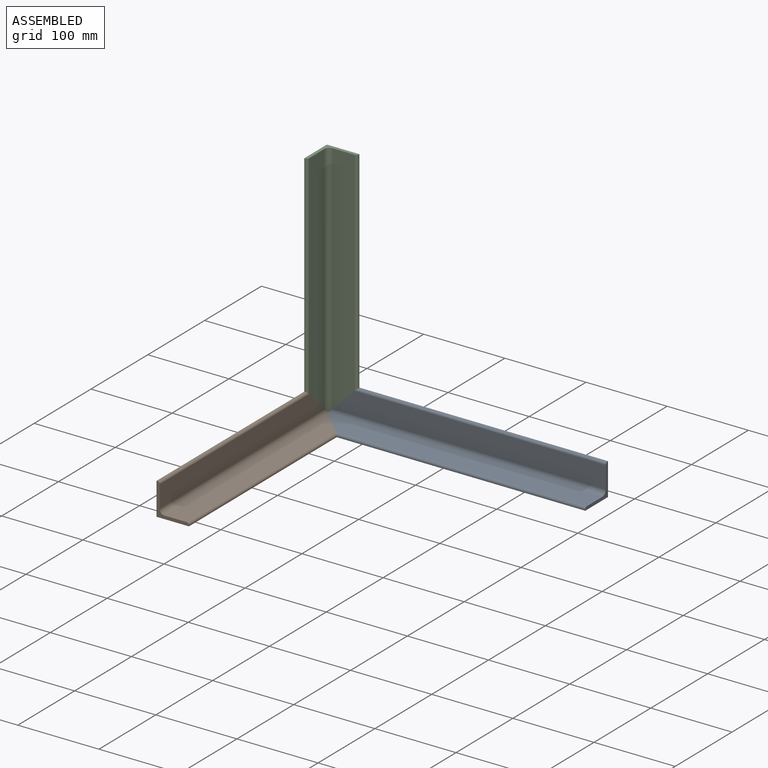
[diagram: assembled view]
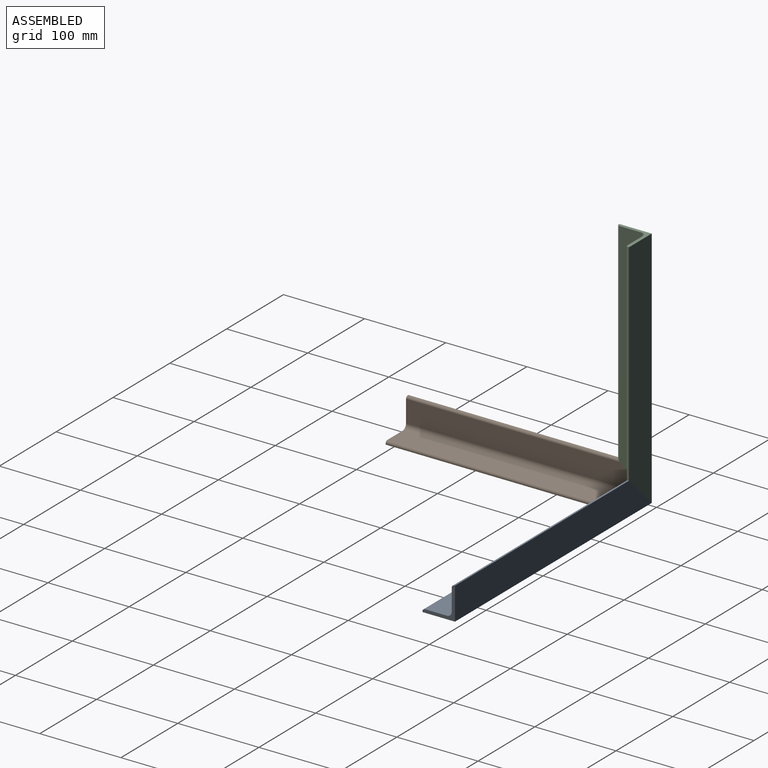
[diagram: assembled view, second angle]
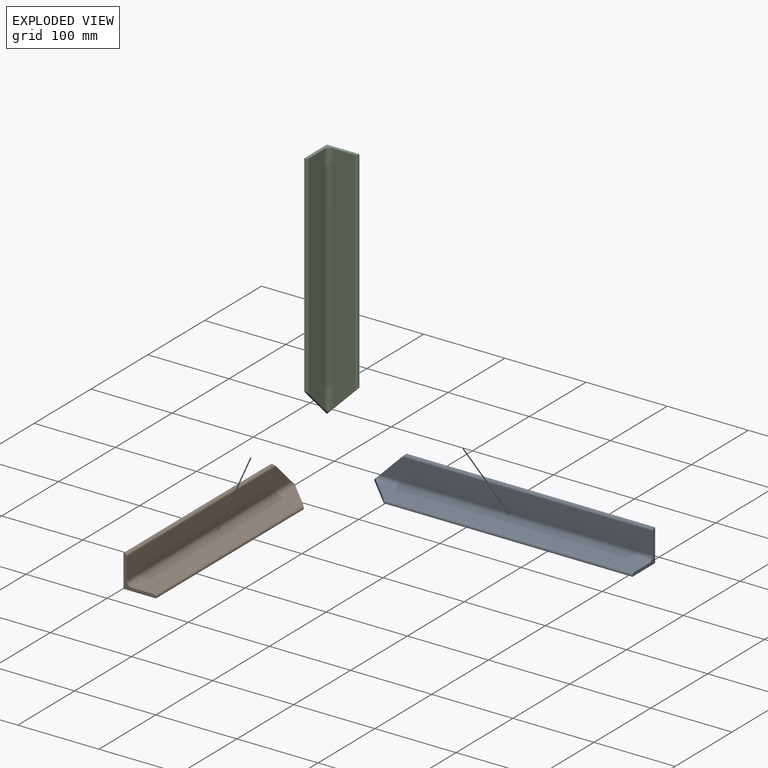
[diagram: exploded view]
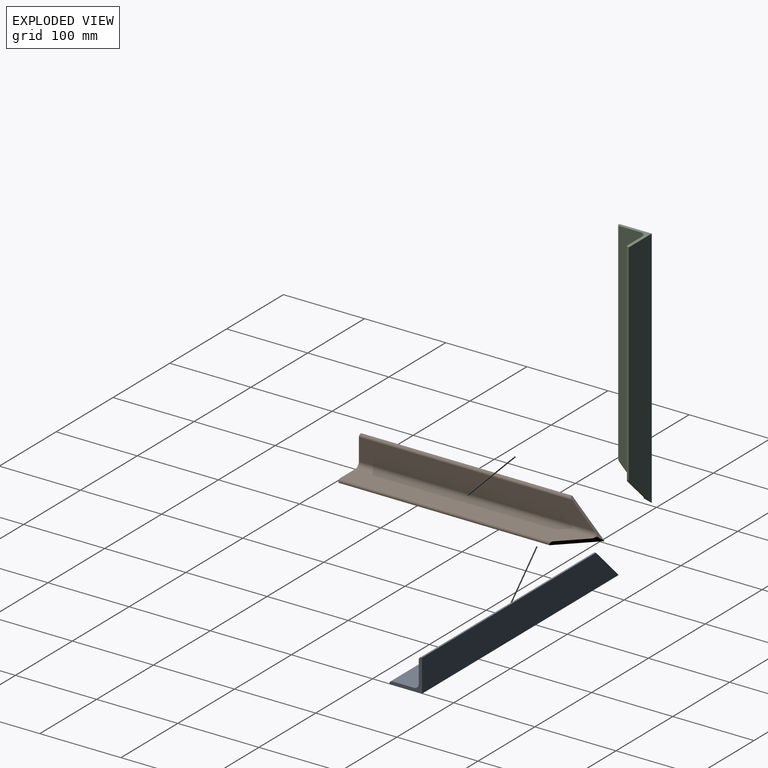
[diagram: exploded view, second angle]
ASSEMBLY  parts=3 mates=2
PART A: 12 faces, bbox 346.3x40x40 mm
  f0: plane 40x40mm, normal (1,0,0), area 307.9mm2, adj f1,f2,f3,f4,f5,f6,f7,f8
  f1: plane 306.32x1mm, normal (0,0,1), area 306.3mm2, adj f0,f2,f9,f10
  f2: cylinder r=3mm len=309.32mm, axis (1,0,0), area 1448.6mm2, adj f0,f1,f3,f10
  f3: plane 336.32x27mm, normal (0,-1,0), area 8716.3mm2, adj f0,f2,f4,f10
  f4: cylinder r=6mm len=340.57mm, axis (1,0,0), area 3190.9mm2, adj f0,f3,f5,f10,f11
  f5: plane 336.32x27mm, normal (0,0,1), area 8716.3mm2, adj f0,f4,f6,f11
  f6: cylinder r=3mm len=309.32mm, axis (1,0,0), area 1448.6mm2, adj f0,f5,f7,f11
  f7: plane 306.32x1mm, normal (0,-1,0), area 306.3mm2, adj f0,f6,f8,f11
  f8: plane 346.32x40mm, normal (0,0,-1), area 13053mm2, adj f0,f7,f9,f11
  f9: plane 346.32x40mm, normal (0,1,0), area 13053mm2, adj f0,f1,f8,f10
  f10: plane 40x40mm, normal (-0.71,0,0.71), area 217.7mm2, adj f1,f2,f3,f4,f9,f11
  f11: plane 40x40mm, normal (-0.71,-0.71,0), area 217.7mm2, adj f4,f5,f6,f7,f8,f10
PART B: 12 faces, bbox 40x300x40 mm
  f0: plane 260x1mm, normal (1,0,0), area 260mm2, adj f1,f4,f10,f11
  f1: cylinder r=3mm len=263mm, axis (0,-1,0), area 1230.4mm2, adj f0,f2,f10,f11
  f2: plane 290x27mm, normal (0,0,1), area 7465.5mm2, adj f1,f3,f10,f11
  f3: cylinder r=6mm len=294.24mm, axis (0,-1,0), area 2754.3mm2, adj f2,f5,f6,f10,f11
  f4: plane 300x40mm, normal (0,0,-1), area 11200mm2, adj f0,f9,f10,f11
  f5: plane 40x40mm, normal (0,0.71,0.71), area 217.7mm2, adj f3,f6,f7,f8,f9,f11
  f6: plane 290x27mm, normal (1,0,0), area 7465.5mm2, adj f3,f5,f7,f10
  f7: cylinder r=3mm len=263mm, axis (0,-1,0), area 1230.4mm2, adj f5,f6,f8,f10
  f8: plane 260x1mm, normal (0,0,1), area 260mm2, adj f5,f7,f9,f10
  f9: plane 300x40mm, normal (-1,0,0), area 11200mm2, adj f4,f5,f8,f10
  f10: plane 40x40mm, normal (0,-1,0), area 307.9mm2, adj f0,f1,f2,f3,f4,f6,f7,f8
  f11: plane 40x40mm, normal (0.71,0.71,0), area 217.7mm2, adj f0,f1,f2,f3,f4,f5
PART C: 12 faces, bbox 40x40x300 mm
  f0: cylinder r=6mm len=294.24mm, axis (0,0,1), area 2754.3mm2, adj f1,f5,f6,f9,f11
  f1: plane 290x27mm, normal (0,-1,0), area 7465.5mm2, adj f0,f2,f6,f11
  f2: cylinder r=3mm len=263mm, axis (0,0,1), area 1230.4mm2, adj f1,f3,f6,f11
  f3: plane 260x1mm, normal (1,0,0), area 260mm2, adj f2,f4,f6,f11
  f4: plane 300x40mm, normal (0,1,0), area 11200mm2, adj f3,f6,f10,f11
  f5: plane 40x40mm, normal (0,-0.71,-0.71), area 217.7mm2, adj f0,f7,f8,f9,f10,f11
  f6: plane 40x40mm, normal (0,0,1), area 307.9mm2, adj f0,f1,f2,f3,f4,f7,f8,f9
  f7: plane 260x1mm, normal (0,-1,0), area 260mm2, adj f5,f6,f8,f10
  f8: cylinder r=3mm len=263mm, axis (0,0,1), area 1230.4mm2, adj f5,f6,f7,f9
  f9: plane 290x27mm, normal (1,0,0), area 7465.5mm2, adj f0,f5,f6,f8
  f10: plane 300x40mm, normal (-1,0,0), area 11200mm2, adj f4,f5,f6,f7
  f11: plane 40x40mm, normal (0.71,0,-0.71), area 217.7mm2, adj f0,f1,f2,f3,f4,f5
PLACE A t=(-89.25,71.55,-12.59)mm
PLACE B t=(-89.25,71.55,-12.59)mm
PLACE C t=(-89.25,71.55,-12.59)mm
MATE fastened B.f5 <-> C.f5  axis (0,0.71,0.71) through (-89.25,71.55,-12.59)mm
MATE fastened C.f11 <-> A.f10  axis (0.71,0,-0.71) through (-89.25,71.55,-12.59)mm
